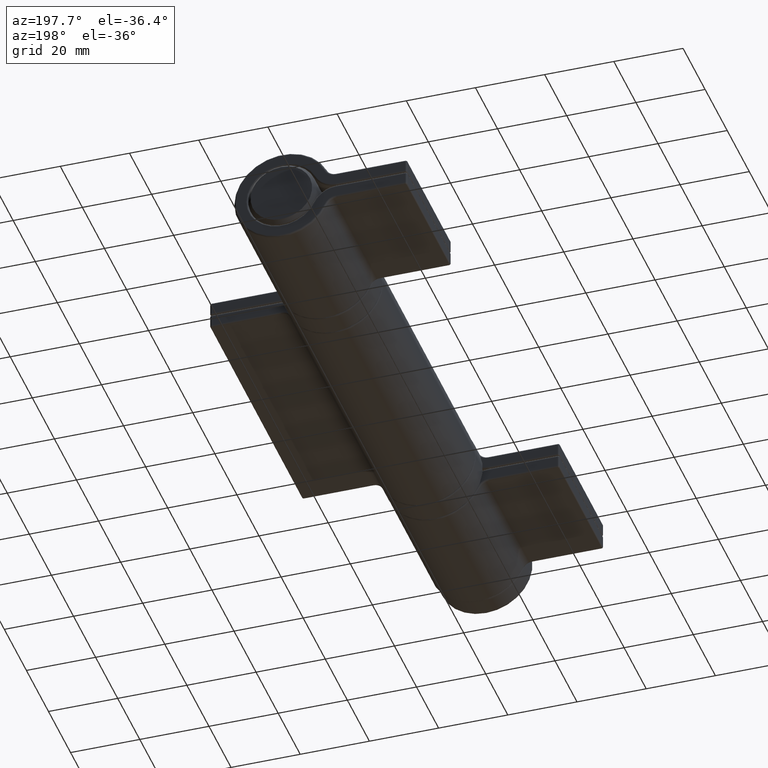
[diagram: clean part render]
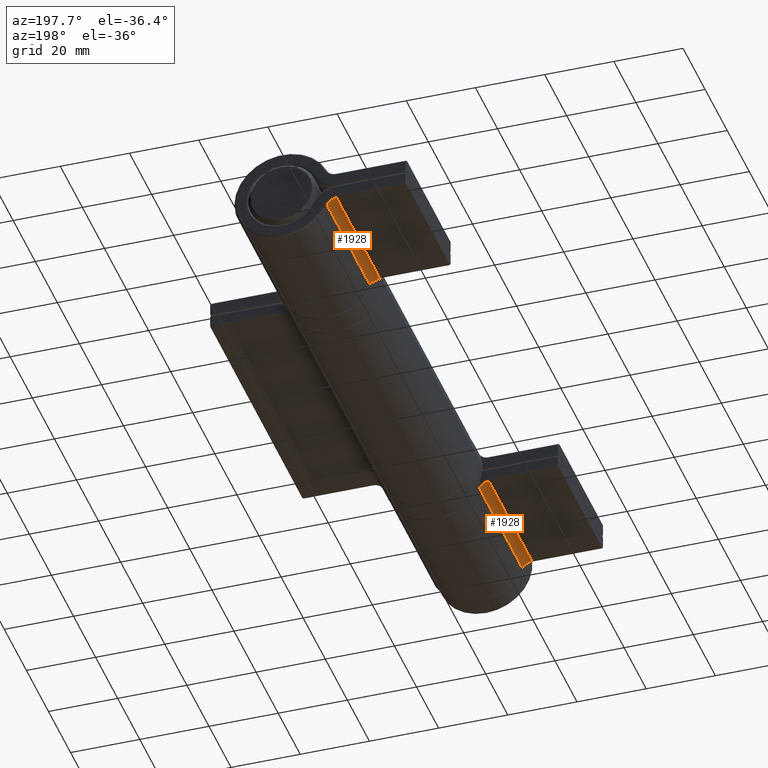
[diagram: same view with one multi-face feature highlighted, each face labeled with its STEP entity id]
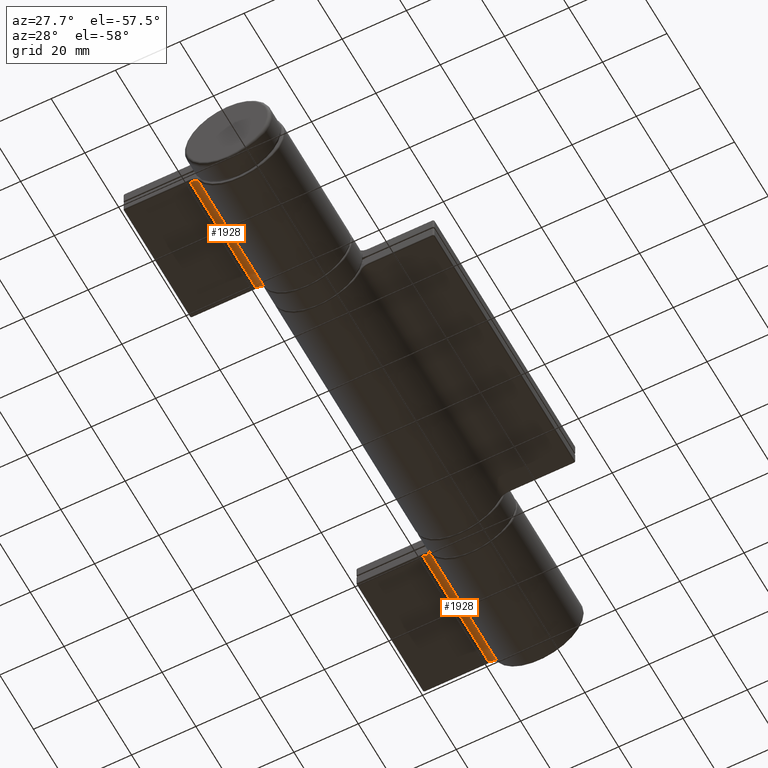
[diagram: same view with one multi-face feature highlighted, each face labeled with its STEP entity id]
A machine part, auxiliary view. The highlighted faces form ONE feature: a constant-radius fillet chain: 2 tangent blend faces with common blend radius 3 mm. The faces share edges in the B-rep.
A second angle (auxiliary view) of the same feature is appended — it is thin or edge-on in the first view.
Their STEP definitions:
[1] entity #1928 (Cylinder):
#122 = CARTESIAN_POINT ( 'NONE',  ( -7.050000000000001599, 20.00000000000000000, 15.46924367899090313 ) ) ;
#269 = DIRECTION ( 'NONE',  ( -0.000000000000000000, -1.000000000000000000, -0.000000000000000000 ) ) ;
#401 = VECTOR ( 'NONE', #9799, 1000.000000000000000 ) ;
#622 = CARTESIAN_POINT ( 'NONE',  ( -5.805882352941177160, 20.00000000000000000, 12.73937714740427296 ) ) ;
#896 = VERTEX_POINT ( 'NONE', #5345 ) ;
#1071 = VECTOR ( 'NONE', #10265, 1000.000000000000000 ) ;
#1202 = CARTESIAN_POINT ( 'NONE',  ( -4.050000000000002487, -19.50000000000000000, 15.46924367899090313 ) ) ;
#1316 = CARTESIAN_POINT ( 'NONE',  ( -5.805882352941177160, 19.50000000000000000, 12.73937714740427296 ) ) ;
#1635 = EDGE_LOOP ( 'NONE', ( #8504, #5991, #5546, #4672 ) ) ;
#1857 = DIRECTION ( 'NONE',  ( 0.000000000000000000, 1.000000000000000000, -0.000000000000000000 ) ) ;
#1859 = LINE ( 'NONE', #9370, #1071 ) ;
#1928 = ADVANCED_FACE ( 'NONE', ( #3038 ), #4606, .F. ) ;
#3038 = FACE_OUTER_BOUND ( 'NONE', #1635, .T. ) ;
#3042 = AXIS2_PLACEMENT_3D ( 'NONE', #122, #269, #6807 ) ;
#3193 = AXIS2_PLACEMENT_3D ( 'NONE', #7388, #1857, #6161 ) ;
#3531 = LINE ( 'NONE', #622, #401 ) ;
#3682 = EDGE_CURVE ( 'NONE', #896, #5137, #4951, .T. ) ;
#3738 = EDGE_CURVE ( 'NONE', #10123, #5387, #9653, .T. ) ;
#3743 = EDGE_CURVE ( 'NONE', #896, #5387, #1859, .T. ) ;
#4491 = DIRECTION ( 'NONE',  ( 0.000000000000000000, 0.000000000000000000, 1.000000000000000000 ) ) ;
#4606 = CYLINDRICAL_SURFACE ( 'NONE', #3042, 2.999999999999999112 ) ;
#4672 = ORIENTED_EDGE ( 'NONE', *, *, #3682, .T. ) ;
#4951 = CIRCLE ( 'NONE', #3193, 2.999999999999999112 ) ;
#5137 = VERTEX_POINT ( 'NONE', #1316 ) ;
#5240 = CARTESIAN_POINT ( 'NONE',  ( -7.050000000000001599, -19.50000000000000000, 15.46924367899090313 ) ) ;
#5345 = CARTESIAN_POINT ( 'NONE',  ( -4.050000000000002487, 19.50000000000000000, 15.46924367899090313 ) ) ;
#5387 = VERTEX_POINT ( 'NONE', #1202 ) ;
#5546 = ORIENTED_EDGE ( 'NONE', *, *, #3743, .F. ) ;
#5950 = EDGE_CURVE ( 'NONE', #5137, #10123, #3531, .T. ) ;
#5991 = ORIENTED_EDGE ( 'NONE', *, *, #3738, .T. ) ;
#6161 = DIRECTION ( 'NONE',  ( 0.000000000000000000, 0.000000000000000000, 1.000000000000000000 ) ) ;
#6807 = DIRECTION ( 'NONE',  ( 0.000000000000000000, 0.000000000000000000, -1.000000000000000000 ) ) ;
#7388 = CARTESIAN_POINT ( 'NONE',  ( -7.050000000000001599, 19.50000000000000000, 15.46924367899090313 ) ) ;
#8504 = ORIENTED_EDGE ( 'NONE', *, *, #5950, .T. ) ;
#9370 = CARTESIAN_POINT ( 'NONE',  ( -4.050000000000002487, 20.00000000000000000, 15.46924367899090313 ) ) ;
#9653 = CIRCLE ( 'NONE', #9873, 2.999999999999999112 ) ;
#9799 = DIRECTION ( 'NONE',  ( -0.000000000000000000, -1.000000000000000000, -0.000000000000000000 ) ) ;
#9873 = AXIS2_PLACEMENT_3D ( 'NONE', #5240, #10343, #4491 ) ;
#9933 = CARTESIAN_POINT ( 'NONE',  ( -5.805882352941177160, -19.50000000000000000, 12.73937714740427296 ) ) ;
#10123 = VERTEX_POINT ( 'NONE', #9933 ) ;
#10265 = DIRECTION ( 'NONE',  ( -0.000000000000000000, -1.000000000000000000, -0.000000000000000000 ) ) ;
#10343 = DIRECTION ( 'NONE',  ( -0.000000000000000000, -1.000000000000000000, 0.000000000000000000 ) ) ;
[2] entity #1928 (Cylinder):
#122 = CARTESIAN_POINT ( 'NONE',  ( -7.050000000000001599, 20.00000000000000000, 15.46924367899090313 ) ) ;
#269 = DIRECTION ( 'NONE',  ( -0.000000000000000000, -1.000000000000000000, -0.000000000000000000 ) ) ;
#401 = VECTOR ( 'NONE', #9799, 1000.000000000000000 ) ;
#622 = CARTESIAN_POINT ( 'NONE',  ( -5.805882352941177160, 20.00000000000000000, 12.73937714740427296 ) ) ;
#896 = VERTEX_POINT ( 'NONE', #5345 ) ;
#1071 = VECTOR ( 'NONE', #10265, 1000.000000000000000 ) ;
#1202 = CARTESIAN_POINT ( 'NONE',  ( -4.050000000000002487, -19.50000000000000000, 15.46924367899090313 ) ) ;
#1316 = CARTESIAN_POINT ( 'NONE',  ( -5.805882352941177160, 19.50000000000000000, 12.73937714740427296 ) ) ;
#1635 = EDGE_LOOP ( 'NONE', ( #8504, #5991, #5546, #4672 ) ) ;
#1857 = DIRECTION ( 'NONE',  ( 0.000000000000000000, 1.000000000000000000, -0.000000000000000000 ) ) ;
#1859 = LINE ( 'NONE', #9370, #1071 ) ;
#1928 = ADVANCED_FACE ( 'NONE', ( #3038 ), #4606, .F. ) ;
#3038 = FACE_OUTER_BOUND ( 'NONE', #1635, .T. ) ;
#3042 = AXIS2_PLACEMENT_3D ( 'NONE', #122, #269, #6807 ) ;
#3193 = AXIS2_PLACEMENT_3D ( 'NONE', #7388, #1857, #6161 ) ;
#3531 = LINE ( 'NONE', #622, #401 ) ;
#3682 = EDGE_CURVE ( 'NONE', #896, #5137, #4951, .T. ) ;
#3738 = EDGE_CURVE ( 'NONE', #10123, #5387, #9653, .T. ) ;
#3743 = EDGE_CURVE ( 'NONE', #896, #5387, #1859, .T. ) ;
#4491 = DIRECTION ( 'NONE',  ( 0.000000000000000000, 0.000000000000000000, 1.000000000000000000 ) ) ;
#4606 = CYLINDRICAL_SURFACE ( 'NONE', #3042, 2.999999999999999112 ) ;
#4672 = ORIENTED_EDGE ( 'NONE', *, *, #3682, .T. ) ;
#4951 = CIRCLE ( 'NONE', #3193, 2.999999999999999112 ) ;
#5137 = VERTEX_POINT ( 'NONE', #1316 ) ;
#5240 = CARTESIAN_POINT ( 'NONE',  ( -7.050000000000001599, -19.50000000000000000, 15.46924367899090313 ) ) ;
#5345 = CARTESIAN_POINT ( 'NONE',  ( -4.050000000000002487, 19.50000000000000000, 15.46924367899090313 ) ) ;
#5387 = VERTEX_POINT ( 'NONE', #1202 ) ;
#5546 = ORIENTED_EDGE ( 'NONE', *, *, #3743, .F. ) ;
#5950 = EDGE_CURVE ( 'NONE', #5137, #10123, #3531, .T. ) ;
#5991 = ORIENTED_EDGE ( 'NONE', *, *, #3738, .T. ) ;
#6161 = DIRECTION ( 'NONE',  ( 0.000000000000000000, 0.000000000000000000, 1.000000000000000000 ) ) ;
#6807 = DIRECTION ( 'NONE',  ( 0.000000000000000000, 0.000000000000000000, -1.000000000000000000 ) ) ;
#7388 = CARTESIAN_POINT ( 'NONE',  ( -7.050000000000001599, 19.50000000000000000, 15.46924367899090313 ) ) ;
#8504 = ORIENTED_EDGE ( 'NONE', *, *, #5950, .T. ) ;
#9370 = CARTESIAN_POINT ( 'NONE',  ( -4.050000000000002487, 20.00000000000000000, 15.46924367899090313 ) ) ;
#9653 = CIRCLE ( 'NONE', #9873, 2.999999999999999112 ) ;
#9799 = DIRECTION ( 'NONE',  ( -0.000000000000000000, -1.000000000000000000, -0.000000000000000000 ) ) ;
#9873 = AXIS2_PLACEMENT_3D ( 'NONE', #5240, #10343, #4491 ) ;
#9933 = CARTESIAN_POINT ( 'NONE',  ( -5.805882352941177160, -19.50000000000000000, 12.73937714740427296 ) ) ;
#10123 = VERTEX_POINT ( 'NONE', #9933 ) ;
#10265 = DIRECTION ( 'NONE',  ( -0.000000000000000000, -1.000000000000000000, -0.000000000000000000 ) ) ;
#10343 = DIRECTION ( 'NONE',  ( -0.000000000000000000, -1.000000000000000000, 0.000000000000000000 ) ) ;